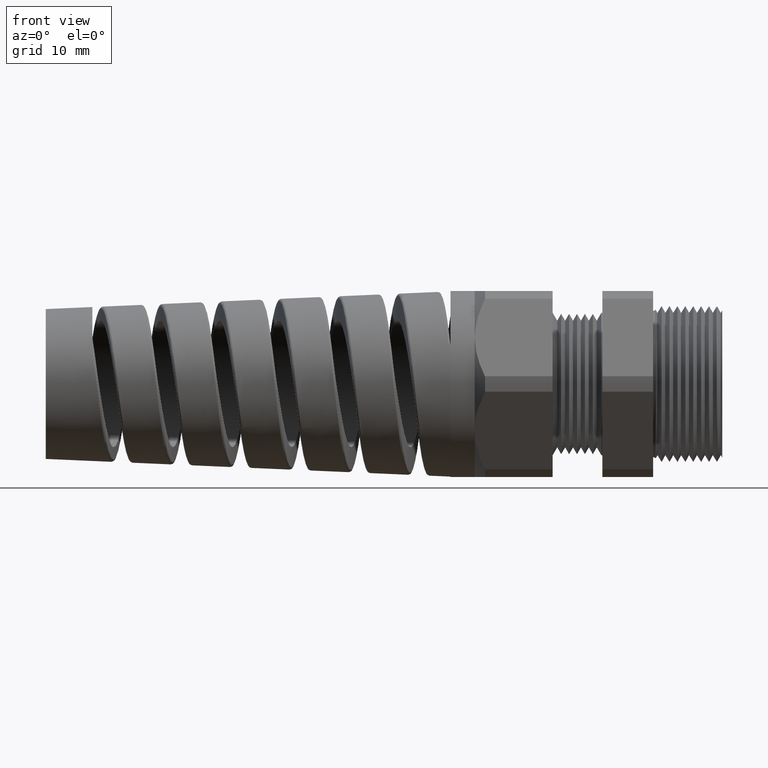
[diagram: clean part render]
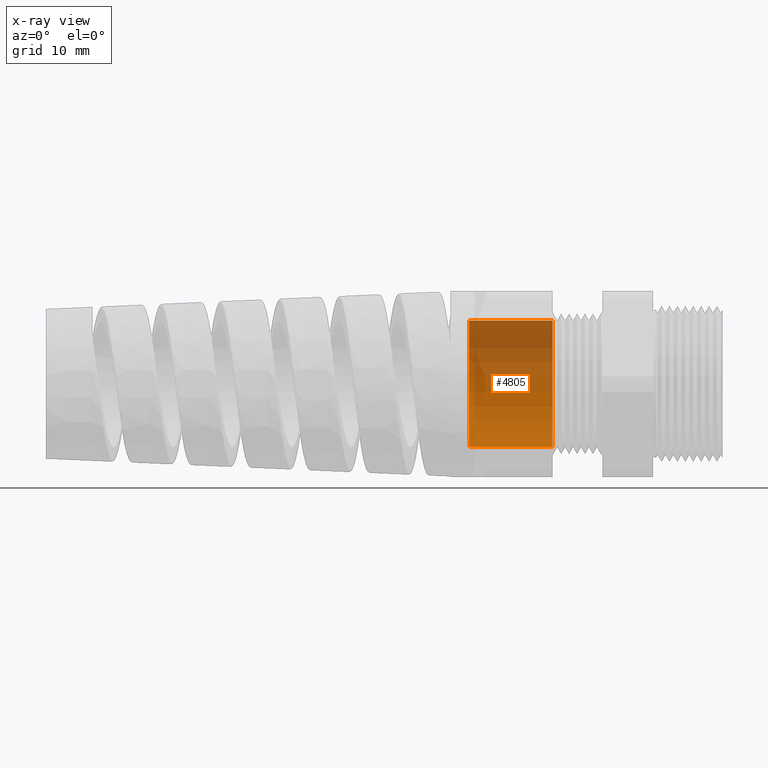
[diagram: x-ray — body ghosted, one internal face saturated and labeled with its STEP entity id]
A machine part, front view, then the same camera in x-ray: the body is ghosted and one INTERNAL B-rep face — a face not visible from any outside direction — is saturated and labeled: STEP entity #4805.
In plain terms, the highlighted cylindrical surface (partial cylindrical patch) has radius 8.128 mm, axis along (1, 0, 0).
Its self-contained STEP definition (entity closure, byte-faithful):
#75 = DIRECTION ( 'NONE',  ( 1.000000000000000000, 0.0000000000000000000, 0.0000000000000000000 ) ) ;
#1750 = DIRECTION ( 'NONE',  ( 0.0000000000000000000, 0.0000000000000000000, -1.000000000000000000 ) ) ;
#1751 = DIRECTION ( 'NONE',  ( 1.000000000000000000, 0.0000000000000000000, 0.0000000000000000000 ) ) ;
#1752 = AXIS2_PLACEMENT_3D ( 'NONE', #1773, #1751, #1750 ) ;
#1753 = CIRCLE ( 'NONE', #1752, 0.3200000000000000100 ) ;
#1773 = CARTESIAN_POINT ( 'NONE',  ( -1.240000000000000200, 0.0000000000000000000, 0.0000000000000000000 ) ) ;
#4805 = ADVANCED_FACE ( 'NONE', ( #7591 ), #7590, .T. ) ;
#4807 = VERTEX_POINT ( 'NONE', #7585 ) ;
#4808 = ORIENTED_EDGE ( 'NONE', *, *, #4863, .F. ) ;
#4814 = VERTEX_POINT ( 'NONE', #7584 ) ;
#4817 = ORIENTED_EDGE ( 'NONE', *, *, #4907, .T. ) ;
#4822 = ORIENTED_EDGE ( 'NONE', *, *, #5184, .T. ) ;
#4835 = ORIENTED_EDGE ( 'NONE', *, *, #4837, .F. ) ;
#4837 = EDGE_CURVE ( 'NONE', #5125, #4814, #7627, .T. ) ;
#4843 = EDGE_LOOP ( 'NONE', ( #4822, #4817, #4808, #4835 ) ) ;
#4863 = EDGE_CURVE ( 'NONE', #4814, #4807, #7647, .T. ) ;
#4907 = EDGE_CURVE ( 'NONE', #5143, #4807, #7707, .T. ) ;
#5125 = VERTEX_POINT ( 'NONE', #11232 ) ;
#5143 = VERTEX_POINT ( 'NONE', #11288 ) ;
#5184 = EDGE_CURVE ( 'NONE', #5125, #5143, #1753, .T. ) ;
#7211 = VECTOR ( 'NONE', #75, 39.37007874015748100 ) ;
#7584 = CARTESIAN_POINT ( 'NONE',  ( -0.8175590551181102200, 0.0000000000000000000, -0.3200000000000000100 ) ) ;
#7585 = CARTESIAN_POINT ( 'NONE',  ( -0.8175590551181102200, 3.918869757271530800E-017, 0.3200000000000000100 ) ) ;
#7586 = DIRECTION ( 'NONE',  ( 0.0000000000000000000, 0.0000000000000000000, -1.000000000000000000 ) ) ;
#7587 = DIRECTION ( 'NONE',  ( 1.000000000000000000, 0.0000000000000000000, 0.0000000000000000000 ) ) ;
#7588 = CARTESIAN_POINT ( 'NONE',  ( 0.0000000000000000000, 0.0000000000000000000, 0.0000000000000000000 ) ) ;
#7589 = AXIS2_PLACEMENT_3D ( 'NONE', #7588, #7587, #7586 ) ;
#7590 = CYLINDRICAL_SURFACE ( 'NONE', #7589, 0.3200000000000000100 ) ;
#7591 = FACE_OUTER_BOUND ( 'NONE', #4843, .T. ) ;
#7624 = DIRECTION ( 'NONE',  ( 1.000000000000000000, 0.0000000000000000000, 0.0000000000000000000 ) ) ;
#7625 = VECTOR ( 'NONE', #7624, 39.37007874015748100 ) ;
#7626 = CARTESIAN_POINT ( 'NONE',  ( 0.0000000000000000000, 0.0000000000000000000, -0.3200000000000000100 ) ) ;
#7627 = LINE ( 'NONE', #7626, #7625 ) ;
#7644 = DIRECTION ( 'NONE',  ( 0.0000000000000000000, 0.0000000000000000000, -1.000000000000000000 ) ) ;
#7645 = DIRECTION ( 'NONE',  ( 1.000000000000000000, 0.0000000000000000000, 0.0000000000000000000 ) ) ;
#7646 = AXIS2_PLACEMENT_3D ( 'NONE', #7652, #7645, #7644 ) ;
#7647 = CIRCLE ( 'NONE', #7646, 0.3200000000000000100 ) ;
#7652 = CARTESIAN_POINT ( 'NONE',  ( -0.8175590551181102200, 0.0000000000000000000, 0.0000000000000000000 ) ) ;
#7706 = CARTESIAN_POINT ( 'NONE',  ( 0.0000000000000000000, 3.918869757271530800E-017, 0.3200000000000000100 ) ) ;
#7707 = LINE ( 'NONE', #7706, #7211 ) ;
#11232 = CARTESIAN_POINT ( 'NONE',  ( -1.240000000000000200, 0.0000000000000000000, -0.3200000000000000100 ) ) ;
#11288 = CARTESIAN_POINT ( 'NONE',  ( -1.240000000000000200, 3.918869757271530800E-017, 0.3200000000000000100 ) ) ;